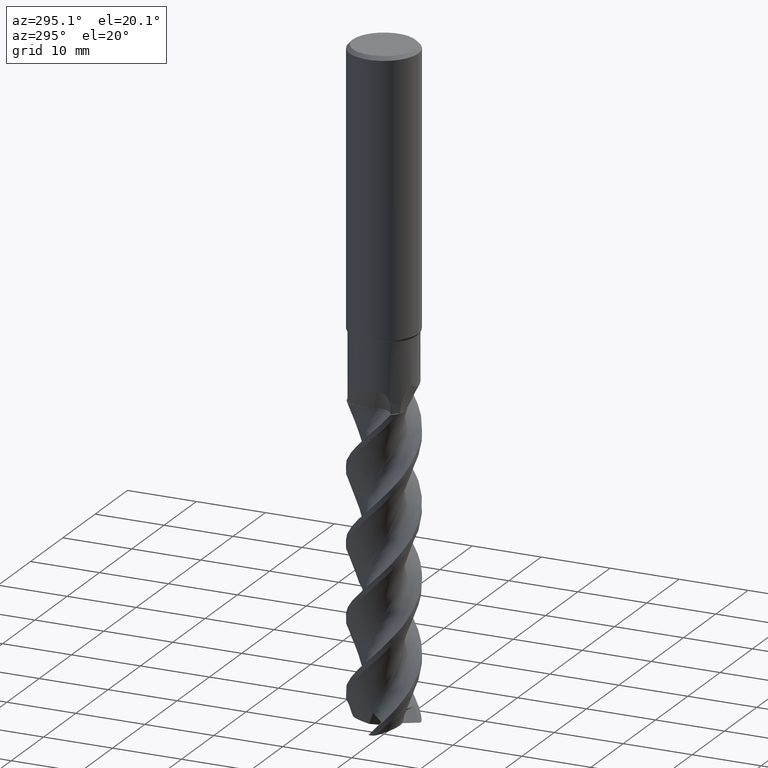
[diagram: clean part render]
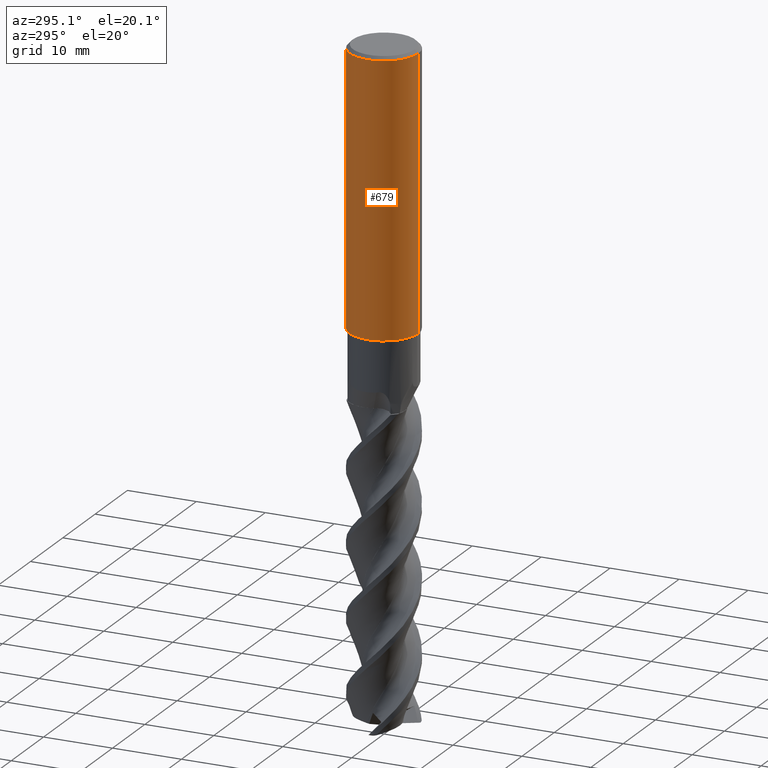
[diagram: same view with one face highlighted and labeled with its STEP entity id]
A machine part, auxiliary view. The second image highlights one B-rep face of the part: STEP entity #679.
In plain terms, the highlighted cylindrical surface (partial cylindrical patch) has radius 5 mm, axis along (-0, -0, 1).
Its self-contained STEP definition (entity closure, byte-faithful):
#505=VERTEX_POINT('',#1456);
#525=VERTEX_POINT('',#1477);
#549=EDGE_CURVE('',#1411,#873,#1503,.T.);
#679=ADVANCED_FACE('',(#1646,#1647,#1648),#1649,.T.);
#683=EDGE_CURVE('',#957,#1275,#1653,.T.);
#695=VERTEX_POINT('',#1665);
#715=EDGE_CURVE('',#695,#1151,#1686,.T.);
#749=VERTEX_POINT('',#1724);
#759=VERTEX_POINT('',#1734);
#765=VERTEX_POINT('',#1741);
#811=EDGE_CURVE('',#765,#749,#1789,.T.);
#851=EDGE_CURVE('',#1275,#1151,#1833,.T.);
#873=VERTEX_POINT('',#1857);
#893=VERTEX_POINT('',#1880);
#957=VERTEX_POINT('',#1951);
#967=EDGE_CURVE('',#505,#765,#1963,.T.);
#1051=EDGE_CURVE('',#759,#525,#2053,.T.);
#1151=VERTEX_POINT('',#2158);
#1183=EDGE_CURVE('',#873,#893,#2192,.T.);
#1205=EDGE_CURVE('',#525,#505,#2216,.T.);
#1233=EDGE_CURVE('',#893,#1411,#2246,.T.);
#1271=EDGE_CURVE('',#695,#957,#2288,.T.);
#1275=VERTEX_POINT('',#2293);
#1323=EDGE_CURVE('',#749,#759,#2350,.T.);
#1411=VERTEX_POINT('',#2449);
#1456=CARTESIAN_POINT('',(-0.540415645104002,4.97070929853344,-30.3688525727368));
#1477=CARTESIAN_POINT('',(-0.0223606238739375,4.99995,-30.78572664287));
#1503=ELLIPSE('',#3360,5.5746421602143,5.0);
#1646=FACE_OUTER_BOUND('',#4980,.T.);
#1647=FACE_BOUND('',#4981,.T.);
#1648=FACE_BOUND('',#4982,.T.);
#1649=CYLINDRICAL_SURFACE('',#4983,5.0);
#1653=CIRCLE('',#4989,5.0);
#1665=CARTESIAN_POINT('',(6.12303176911189E-016,-5.0,-39.654));
#1686=CIRCLE('',#5517,5.0);
#1724=CARTESIAN_POINT('',(-1.15007005908306,4.86593658602336,-30.0064544749723));
#1734=CARTESIAN_POINT('',(-0.0223606238741619,4.99995,-31.3178252748461));
#1741=CARTESIAN_POINT('',(-0.624809296542345,4.9608077308997,-30.0064544749723));
#1789=CIRCLE('',#6886,5.0);
#1833=LINE('',#7359,#7360);
#1857=CARTESIAN_POINT('',(-1.48559931323941,4.77420094680802,-32.2897185223062));
#1880=CARTESIAN_POINT('',(-0.0223606238740562,4.99995,-33.0221235437959));
#1951=CARTESIAN_POINT('',(6.12303176911189E-016,-5.0,-0.5));
#1963=B_SPLINE_CURVE_WITH_KNOTS('',3,(#8574,#8575,#8576,#8577,#8578,#8579,#8580,#8581,#8582,#8583,#8584,#8585,#8586,#8587,#8588,#8589,#8590,#8591,#8592,#8593,#8594,#8595,#8596,#8597,#8598,#8599,#8600),.UNSPECIFIED.,.F.,.F.,(4,2,3,2,2,2,2,2,2,2,2,2,4),(-0.603000499753014,-0.301500249876507,0.0,0.301500249876507,0.603000499753014,0.905281064529937,1.20756162930686,1.50852806620539,1.80949450310392,2.11084856779286,2.41220263248181,2.71355669717075,3.0149107618597),.UNSPECIFIED.);
#2053=LINE('',#11114,#11115);
#2158=CARTESIAN_POINT('',(0.0,5.0,-39.654));
#2192=B_SPLINE_CURVE_WITH_KNOTS('',3,(#11751,#11752,#11753,#11754,#11755,#11756,#11757,#11758,#11759,#11760,#11761,#11762,#11763,#11764,#11765,#11766),.UNSPECIFIED.,.F.,.F.,(4,2,2,2,2,2,2,4),(6.54109252178393,6.88549734634811,7.22994914101815,7.57440093568819,7.91885273035823,8.26330452502827,8.60711872297111,8.95093292091395),.UNSPECIFIED.);
#2216=B_SPLINE_CURVE_WITH_KNOTS('',3,(#11808,#11809,#11810,#11811,#11812,#11813,#11814,#11815,#11816,#11817,#11818,#11819,#11820,#11821,#11822,#11823,#11824,#11825,#11826,#11827,#11828,#11829,#11830,#11831,#11832,#11833,#11834),.UNSPECIFIED.,.F.,.F.,(4,2,3,2,2,2,2,2,2,2,2,2,4),(-0.603000499753014,-0.301500249876507,0.0,0.301500249876507,0.603000499753014,0.905281064529937,1.20756162930686,1.50852806620539,1.80949450310392,2.11084856779286,2.41220263248181,2.71355669717075,3.0149107618597),.UNSPECIFIED.);
#2246=LINE('',#11993,#11994);
#2288=LINE('',#12064,#12065);
#2293=CARTESIAN_POINT('',(0.0,5.0,-0.5));
#2350=B_SPLINE_CURVE_WITH_KNOTS('',3,(#12903,#12904,#12905,#12906,#12907,#12908,#12909,#12910,#12911,#12912,#12913,#12914,#12915,#12916),.UNSPECIFIED.,.F.,.F.,(4,2,2,2,2,2,4),(3.48518623586871,3.98268614979816,4.48018606372761,4.97768597765706,5.47391781680518,5.97014965595331,6.46980642683155),.UNSPECIFIED.);
#2449=CARTESIAN_POINT('',(-0.022360623874032,4.99995,-31.5683174982865));
#3360=AXIS2_PLACEMENT_3D('',#15135,#15136,#15137);
#4980=EDGE_LOOP('',(#15282,#15283,#15284,#15285));
#4981=EDGE_LOOP('',(#15286,#15287,#15288));
#4982=EDGE_LOOP('',(#15289,#15290,#15291,#15292,#15293));
#4983=AXIS2_PLACEMENT_3D('',#15294,#15295,#15296);
#4989=AXIS2_PLACEMENT_3D('',#15300,#15301,#15302);
#5517=AXIS2_PLACEMENT_3D('',#15317,#15318,#15319);
#6886=AXIS2_PLACEMENT_3D('',#15403,#15404,#15405);
#7359=CARTESIAN_POINT('',(-6.12303176911189E-016,5.0,-20.077));
#7360=VECTOR('',#15444,1.0);
#8574=CARTESIAN_POINT('',(0.739090223917679,4.94507286507583,-29.447059301492));
#8575=CARTESIAN_POINT('',(0.809714115490718,4.93451742347551,-29.5177778657692));
#8576=CARTESIAN_POINT('',(0.871053529322123,4.92371633214347,-29.6073606839152));
#8577=CARTESIAN_POINT('',(0.9525321460151,4.90860461891915,-29.8039499949859));
#8578=CARTESIAN_POINT('',(0.972658030198616,4.90448125251694,-29.910976356893));
#8579=CARTESIAN_POINT('',(0.972658030198616,4.90448125251694,-30.0114764401852));
#8580=CARTESIAN_POINT('',(0.972658030198616,4.90448125251694,-30.1119765234773));
#8581=CARTESIAN_POINT('',(0.9525321460151,4.90860461891915,-30.2190028853844));
#8582=CARTESIAN_POINT('',(0.871053529322123,4.92371633214347,-30.4155921964552));
#8583=CARTESIAN_POINT('',(0.809714115490719,4.93451742347551,-30.5051750146012));
#8584=CARTESIAN_POINT('',(0.668283550158084,4.95565562528821,-30.6467951703653));
#8585=CARTESIAN_POINT('',(0.57860485054302,4.96739281956991,-30.7083047454339));
#8586=CARTESIAN_POINT('',(0.381781703919566,4.98638323105567,-30.7900227915518));
#8587=CARTESIAN_POINT('',(0.274615689105447,4.9934696192963,-30.810217997343));
#8588=CARTESIAN_POINT('',(0.0736550345331755,5.00046392535656,-30.810217997343));
#8589=CARTESIAN_POINT('',(-0.0333084125996869,5.00085705242446,-30.7901796240269));
#8590=CARTESIAN_POINT('',(-0.230021364744812,4.99567521773621,-30.7087246193692));
#8591=CARTESIAN_POINT('',(-0.319777384248839,4.99026997289342,-30.6473130123696));
#8592=CARTESIAN_POINT('',(-0.461588668494992,4.9791566455235,-30.5056230263792));
#8593=CARTESIAN_POINT('',(-0.523099346955725,4.97273104303287,-30.4158392087191));
#8594=CARTESIAN_POINT('',(-0.604720484215197,4.96346654097369,-30.2189969787532));
#8595=CARTESIAN_POINT('',(-0.624825084116949,4.96080574244328,-30.1119277950815));
#8596=CARTESIAN_POINT('',(-0.624825084116949,4.96080574244328,-29.9110250852889));
#8597=CARTESIAN_POINT('',(-0.604720484215199,4.96346654097369,-29.8039559016171));
#8598=CARTESIAN_POINT('',(-0.523099346955731,4.97273104303287,-29.6071136716513));
#8599=CARTESIAN_POINT('',(-0.461588668494991,4.9791566455235,-29.5173298539912));
#8600=CARTESIAN_POINT('',(-0.390637394524234,4.98471688524026,-29.4464392681795));
#11114=CARTESIAN_POINT('',(-0.022360623874032,4.99995,-31.3381234986975));
#11115=VECTOR('',#15674,1.0);
#11751=CARTESIAN_POINT('',(-1.53222492214191,4.75944185676926,-32.2237494965023));
#11752=CARTESIAN_POINT('',(-1.46602953829672,4.78075238428633,-32.3219882363906));
#11753=CARTESIAN_POINT('',(-1.39109970116435,4.80329709406389,-32.4120874561206));
#11754=CARTESIAN_POINT('',(-1.23168862547006,4.84662422135611,-32.5715731791814));
#11755=CARTESIAN_POINT('',(-1.14158518892162,4.86897132411838,-32.6465797495797));
#11756=CARTESIAN_POINT('',(-0.945026646968973,4.91090858548794,-32.7791357845016));
#11757=CARTESIAN_POINT('',(-0.838570688681347,4.93046269590435,-32.8366953863995));
#11758=CARTESIAN_POINT('',(-0.615902260238566,4.96319731649047,-32.9294300728182));
#11759=CARTESIAN_POINT('',(-0.499494461180507,4.97638094124785,-32.9646783119967));
#11760=CARTESIAN_POINT('',(-0.264709162168675,4.99437594186088,-33.0110434159942));
#11761=CARTESIAN_POINT('',(-0.14632819076809,4.99917703876382,-33.0221466897615));
#11762=CARTESIAN_POINT('',(0.0830892500263585,5.00062300331422,-33.0221466897615));
#11763=CARTESIAN_POINT('',(0.201310993793809,4.99732781836603,-33.0110837397249));
#11764=CARTESIAN_POINT('',(0.435877527752524,4.98235107366299,-32.964827881912));
#11765=CARTESIAN_POINT('',(0.552225516433843,4.9706798792064,-32.9296478393409));
#11766=CARTESIAN_POINT('',(0.663533112758597,4.95577681178974,-32.8833444974826));
#11808=CARTESIAN_POINT('',(0.739090223917679,4.94507286507583,-29.447059301492));
#11809=CARTESIAN_POINT('',(0.809714115490718,4.93451742347551,-29.5177778657692));
#11810=CARTESIAN_POINT('',(0.871053529322123,4.92371633214347,-29.6073606839152));
#11811=CARTESIAN_POINT('',(0.9525321460151,4.90860461891915,-29.8039499949859));
#11812=CARTESIAN_POINT('',(0.972658030198616,4.90448125251694,-29.910976356893));
#11813=CARTESIAN_POINT('',(0.972658030198616,4.90448125251694,-30.0114764401852));
#11814=CARTESIAN_POINT('',(0.972658030198616,4.90448125251694,-30.1119765234773));
#11815=CARTESIAN_POINT('',(0.9525321460151,4.90860461891915,-30.2190028853844));
#11816=CARTESIAN_POINT('',(0.871053529322123,4.92371633214347,-30.4155921964552));
#11817=CARTESIAN_POINT('',(0.809714115490719,4.93451742347551,-30.5051750146012));
#11818=CARTESIAN_POINT('',(0.668283550158084,4.95565562528821,-30.6467951703653));
#11819=CARTESIAN_POINT('',(0.57860485054302,4.96739281956991,-30.7083047454339));
#11820=CARTESIAN_POINT('',(0.381781703919566,4.98638323105567,-30.7900227915518));
#11821=CARTESIAN_POINT('',(0.274615689105447,4.9934696192963,-30.810217997343));
#11822=CARTESIAN_POINT('',(0.0736550345331755,5.00046392535656,-30.810217997343));
#11823=CARTESIAN_POINT('',(-0.0333084125996869,5.00085705242446,-30.7901796240269));
#11824=CARTESIAN_POINT('',(-0.230021364744812,4.99567521773621,-30.7087246193692));
#11825=CARTESIAN_POINT('',(-0.319777384248839,4.99026997289342,-30.6473130123696));
#11826=CARTESIAN_POINT('',(-0.461588668494992,4.9791566455235,-30.5056230263792));
#11827=CARTESIAN_POINT('',(-0.523099346955725,4.97273104303287,-30.4158392087191));
#11828=CARTESIAN_POINT('',(-0.604720484215197,4.96346654097369,-30.2189969787532));
#11829=CARTESIAN_POINT('',(-0.624825084116949,4.96080574244328,-30.1119277950815));
#11830=CARTESIAN_POINT('',(-0.624825084116949,4.96080574244328,-29.9110250852889));
#11831=CARTESIAN_POINT('',(-0.604720484215199,4.96346654097369,-29.8039559016171));
#11832=CARTESIAN_POINT('',(-0.523099346955731,4.97273104303287,-29.6071136716513));
#11833=CARTESIAN_POINT('',(-0.461588668494991,4.9791566455235,-29.5173298539912));
#11834=CARTESIAN_POINT('',(-0.390637394524234,4.98471688524026,-29.4464392681795));
#11993=CARTESIAN_POINT('',(-0.022360623874032,4.99995,-31.3381234986975));
#11994=VECTOR('',#15819,1.0);
#12064=CARTESIAN_POINT('',(6.12303176911189E-016,-5.0,-20.077));
#12065=VECTOR('',#15913,1.0);
#12903=CARTESIAN_POINT('',(-1.04955253534846,4.8886030188126,-29.5124179657786));
#12904=CARTESIAN_POINT('',(-1.11682369959179,4.87416032633665,-29.6743733859967));
#12905=CARTESIAN_POINT('',(-1.15010962979076,4.86592723326835,-29.8508206928171));
#12906=CARTESIAN_POINT('',(-1.15010962979076,4.86592723326835,-30.1824873021034));
#12907=CARTESIAN_POINT('',(-1.11682369959179,4.87416032633665,-30.3589346089237));
#12908=CARTESIAN_POINT('',(-0.982281371105157,4.90304571128857,-30.6828454493599));
#12909=CARTESIAN_POINT('',(-0.881055810925627,4.92317724624631,-30.8303680189411));
#12910=CARTESIAN_POINT('',(-0.648047522433528,4.95922342800457,-31.0630273047711));
#12911=CARTESIAN_POINT('',(-0.500628335087547,4.97751559580468,-31.1639688822119));
#12912=CARTESIAN_POINT('',(-0.177088634589299,4.99949295931905,-31.2980504938811));
#12913=CARTESIAN_POINT('',(-0.000925323496746372,5.00273523331845,-31.3311594848892));
#12914=CARTESIAN_POINT('',(0.330858065435099,4.99182056917462,-31.3311594848892));
#12915=CARTESIAN_POINT('',(0.50755156831376,4.97685501334451,-31.2976400648554));
#12916=CARTESIAN_POINT('',(0.669464692169009,4.95497901367292,-31.2302561352577));
#15135=CARTESIAN_POINT('',(0.0,0.0,-31.5572933386072));
#15136=DIRECTION('',(-0.442195774284071,0.0,0.896918556617774));
#15137=DIRECTION('',(0.896918556617774,-0.0,0.442195774284071));
#15282=ORIENTED_EDGE('',*,*,#851,.T.);
#15283=ORIENTED_EDGE('',*,*,#715,.F.);
#15284=ORIENTED_EDGE('',*,*,#1271,.T.);
#15285=ORIENTED_EDGE('',*,*,#683,.T.);
#15286=ORIENTED_EDGE('',*,*,#1183,.T.);
#15287=ORIENTED_EDGE('',*,*,#1233,.T.);
#15288=ORIENTED_EDGE('',*,*,#549,.T.);
#15289=ORIENTED_EDGE('',*,*,#1205,.T.);
#15290=ORIENTED_EDGE('',*,*,#967,.T.);
#15291=ORIENTED_EDGE('',*,*,#811,.T.);
#15292=ORIENTED_EDGE('',*,*,#1323,.T.);
#15293=ORIENTED_EDGE('',*,*,#1051,.T.);
#15294=CARTESIAN_POINT('',(0.0,0.0,-20.077));
#15295=DIRECTION('',(-0.0,-0.0,1.0));
#15296=DIRECTION('',(0.0,1.0,0.0));
#15300=CARTESIAN_POINT('',(0.0,0.0,-0.5));
#15301=DIRECTION('',(0.0,0.0,-1.0));
#15302=DIRECTION('',(0.0,1.0,0.0));
#15317=CARTESIAN_POINT('',(0.0,0.0,-39.654));
#15318=DIRECTION('',(0.0,0.0,-1.0));
#15319=DIRECTION('',(0.0,1.0,0.0));
#15403=CARTESIAN_POINT('',(0.0,0.0,-30.0064544749723));
#15404=DIRECTION('',(0.0,-0.0,1.0));
#15405=DIRECTION('',(0.0,1.0,0.0));
#15444=DIRECTION('',(0.0,0.0,-1.0));
#15674=DIRECTION('',(-0.0,-0.0,1.0));
#15819=DIRECTION('',(-0.0,-0.0,1.0));
#15913=DIRECTION('',(-0.0,-0.0,1.0));